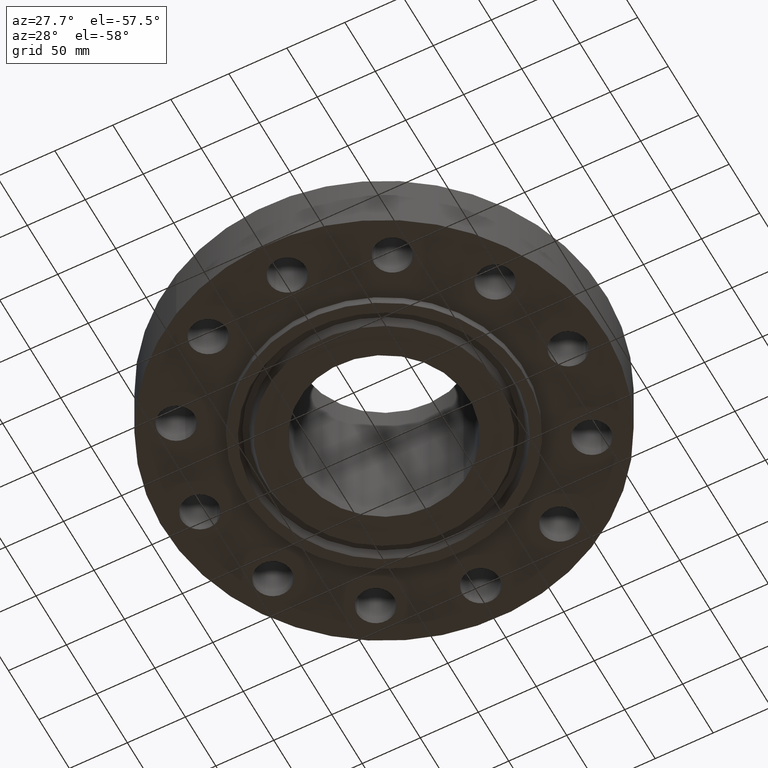
[diagram: clean part render]
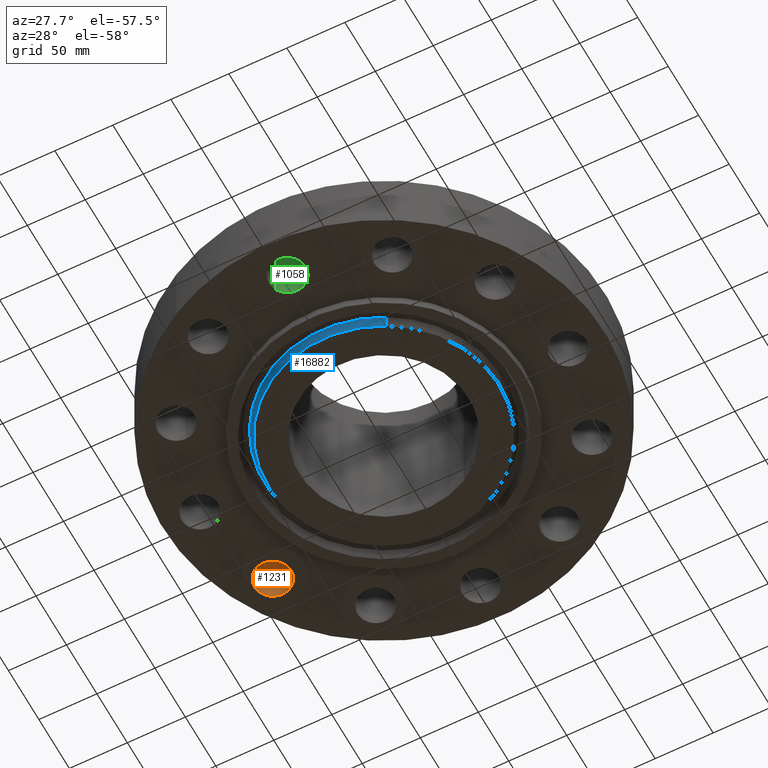
[diagram: same view with three faces highlighted in distinct colors, each labeled with its STEP entity id]
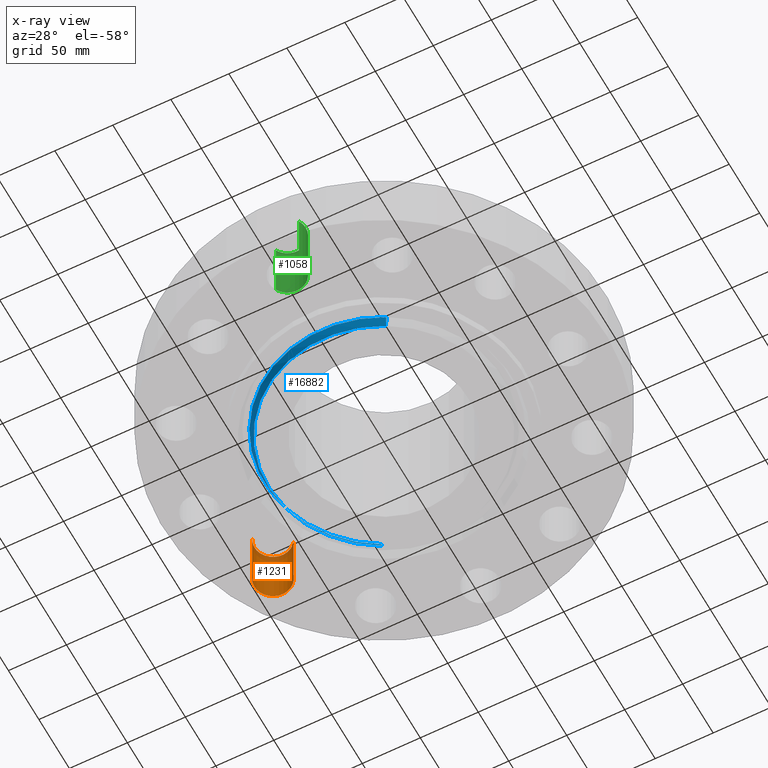
[diagram: x-ray of the same camera — body ghosted, the three highlighted faces saturated]
A machine part, auxiliary view with three faces highlighted in distinct colors.
The next image is the same camera in x-ray (body ghosted, the three faces saturated) — at least one of them is partly hidden behind the body in this view.
Their STEP definitions:

[orange] entity #1231 — the highlighted cylindrical surface (edge-blend (fillet) strip) has radius 15.875 mm, axis along (0, 0, -1).
#345=AXIS2_PLACEMENT_3D('Circle Axis2P3D',#343,#344,$) ;
#605=AXIS2_PLACEMENT_3D('Circle Axis2P3D',#603,#604,$) ;
#1213=AXIS2_PLACEMENT_3D('Cylinder Axis2P3D',#1210,#1211,#1212) ;
#343=CARTESIAN_POINT('Axis2P3D Location',(-5.41265877367,3.12500000001,0.)) ;
#347=CARTESIAN_POINT('Vertex',(-5.94640000907,2.79981498548,0.)) ;
#349=CARTESIAN_POINT('Vertex',(-4.87891753827,3.45018501453,0.)) ;
#598=CARTESIAN_POINT('Vertex',(-4.87891753829,3.45018501452,2.18999999999)) ;
#600=CARTESIAN_POINT('Vertex',(-5.94640000905,2.7998149855,2.18999999999)) ;
#603=CARTESIAN_POINT('Axis2P3D Location',(-5.41265877364,3.12499999998,2.19000000001)) ;
#1210=CARTESIAN_POINT('Axis2P3D Location',(-5.41265877367,3.12500000001,2.18606299213)) ;
#1215=CARTESIAN_POINT('Line Origine',(-5.94640000905,2.7998149855,1.09499999999)) ;
#1220=CARTESIAN_POINT('Line Origine',(-4.87891753829,3.45018501452,1.09499999999)) ;
#344=DIRECTION('Axis2P3D Direction',(0.,0.,-0.0393700787402)) ;
#604=DIRECTION('Axis2P3D Direction',(0.,0.,-0.0393700787402)) ;
#1211=DIRECTION('Axis2P3D Direction',(0.,0.,-0.0393700787402)) ;
#1212=DIRECTION('Axis2P3D XDirection',(-0.0336214951417,-0.0204840954021,0.)) ;
#1216=DIRECTION('Vector Direction',(0.,0.,-0.0393700787402)) ;
#1221=DIRECTION('Vector Direction',(0.,0.,-0.0393700787402)) ;
#1217=VECTOR('Line Direction',#1216,0.0393700787402) ;
#1222=VECTOR('Line Direction',#1221,0.0393700787402) ;
#1226=ORIENTED_EDGE('',*,*,#1219,.F.) ;
#1227=ORIENTED_EDGE('',*,*,#351,.T.) ;
#1228=ORIENTED_EDGE('',*,*,#1224,.T.) ;
#1229=ORIENTED_EDGE('',*,*,#607,.F.) ;
#1231=ADVANCED_FACE('PartBody',(#1230),#1214,.F.) ;
#346=CIRCLE('generated circle',#345,0.625000000025) ;
#606=CIRCLE('generated circle',#605,0.625000000025) ;
#1214=CYLINDRICAL_SURFACE('generated cylinder',#1213,0.625000000003) ;
#351=EDGE_CURVE('',#348,#350,#346,.T.) ;
#607=EDGE_CURVE('',#601,#599,#606,.T.) ;
#1219=EDGE_CURVE('',#348,#601,#1218,.F.) ;
#1224=EDGE_CURVE('',#350,#599,#1223,.F.) ;
#1225=EDGE_LOOP('',(#1226,#1227,#1228,#1229)) ;
#1230=FACE_OUTER_BOUND('',#1225,.T.) ;
#1218=LINE('Line',#1215,#1217) ;
#1223=LINE('Line',#1220,#1222) ;
#348=VERTEX_POINT('',#347) ;
#350=VERTEX_POINT('',#349) ;
#599=VERTEX_POINT('',#598) ;
#601=VERTEX_POINT('',#600) ;

[blue] entity #16882 — the highlighted conical surface has half-angle 23 deg.
#16319=AXIS2_PLACEMENT_3D('Circle Axis2P3D',#16317,#16318,$) ;
#16869=AXIS2_PLACEMENT_3D('Cone Axis2P3D',#16866,#16867,#16868) ;
#16873=AXIS2_PLACEMENT_3D('Circle Axis2P3D',#16871,#16872,$) ;
#16283=CARTESIAN_POINT('Vertex',(1.93994922354,-3.55105323443,-0.0190701156809)) ;
#16290=CARTESIAN_POINT('Vertex',(-1.93994922354,3.55105323443,-0.0190701156788)) ;
#16317=CARTESIAN_POINT('Axis2P3D Location',(0.,0.,-0.0190701156809)) ;
#16833=CARTESIAN_POINT('Line Origine',(-1.91009213606,3.49640020239,-0.16578505784)) ;
#16837=CARTESIAN_POINT('Vertex',(-1.8802350486,3.44174717035,-0.312500000001)) ;
#16840=CARTESIAN_POINT('Line Origine',(1.91009213606,-3.49640020239,-0.16578505784)) ;
#16844=CARTESIAN_POINT('Vertex',(1.8802350486,-3.44174717037,-0.312500000001)) ;
#16866=CARTESIAN_POINT('Axis2P3D Location',(0.,0.,-0.372500000001)) ;
#16871=CARTESIAN_POINT('Axis2P3D Location',(0.,0.,-0.312499999998)) ;
#16318=DIRECTION('Axis2P3D Direction',(0.,0.,0.0393700787402)) ;
#16834=DIRECTION('Vector Direction',(-0.00737505833566,0.0134999537303,0.0362403485611)) ;
#16841=DIRECTION('Vector Direction',(0.00737505833566,-0.0134999537303,0.0362403485611)) ;
#16867=DIRECTION('Axis2P3D Direction',(0.,0.,0.0393700787402)) ;
#16868=DIRECTION('Axis2P3D XDirection',(-0.0188750212049,0.0345504945626,0.)) ;
#16872=DIRECTION('Axis2P3D Direction',(0.,0.,0.0393700787402)) ;
#16835=VECTOR('Line Direction',#16834,0.0393700787402) ;
#16842=VECTOR('Line Direction',#16841,0.0393700787402) ;
#16877=ORIENTED_EDGE('',*,*,#16846,.F.) ;
#16878=ORIENTED_EDGE('',*,*,#16321,.F.) ;
#16879=ORIENTED_EDGE('',*,*,#16839,.T.) ;
#16880=ORIENTED_EDGE('',*,*,#16875,.F.) ;
#16882=ADVANCED_FACE('PartBody',(#16881),#16870,.T.) ;
#16320=CIRCLE('generated circle',#16319,4.04640359624) ;
#16874=CIRCLE('generated circle',#16873,3.92185000001) ;
#16870=CONICAL_SURFACE('Cone',#16869,3.89638151104,0.401425727959) ;
#16321=EDGE_CURVE('',#16291,#16284,#16320,.T.) ;
#16839=EDGE_CURVE('',#16291,#16838,#16836,.F.) ;
#16846=EDGE_CURVE('',#16284,#16845,#16843,.F.) ;
#16875=EDGE_CURVE('',#16845,#16838,#16874,.F.) ;
#16876=EDGE_LOOP('',(#16877,#16878,#16879,#16880)) ;
#16881=FACE_OUTER_BOUND('',#16876,.T.) ;
#16836=LINE('Line',#16833,#16835) ;
#16843=LINE('Line',#16840,#16842) ;
#16284=VERTEX_POINT('',#16283) ;
#16291=VERTEX_POINT('',#16290) ;
#16838=VERTEX_POINT('',#16837) ;
#16845=VERTEX_POINT('',#16844) ;

[green] entity #1058 — the highlighted cylindrical surface (edge-blend (fillet) strip) has radius 15.875 mm, axis along (0, 0, -1).
#282=AXIS2_PLACEMENT_3D('Circle Axis2P3D',#280,#281,$) ;
#524=AXIS2_PLACEMENT_3D('Circle Axis2P3D',#522,#523,$) ;
#1050=AXIS2_PLACEMENT_3D('Cylinder Axis2P3D',#1047,#1048,#1049) ;
#275=CARTESIAN_POINT('Vertex',(0.548489101187,-6.54964096162,0.)) ;
#277=CARTESIAN_POINT('Vertex',(-0.548489101187,-5.95035903837,0.)) ;
#280=CARTESIAN_POINT('Axis2P3D Location',(1.74838271595E-017,-6.24999999999,0.)) ;
#522=CARTESIAN_POINT('Axis2P3D Location',(1.74838271595E-017,-6.25000000004,2.19000000001)) ;
#526=CARTESIAN_POINT('Vertex',(-0.548489101187,-5.95035903842,2.19000000001)) ;
#528=CARTESIAN_POINT('Vertex',(0.548489101184,-6.54964096166,2.18999999999)) ;
#1023=CARTESIAN_POINT('Line Origine',(0.548489101184,-6.54964096166,1.095)) ;
#1028=CARTESIAN_POINT('Line Origine',(-0.548489101184,-5.9503590384,1.095)) ;
#1047=CARTESIAN_POINT('Axis2P3D Location',(7.6540424947E-016,-6.25000000003,2.18606299213)) ;
#281=DIRECTION('Axis2P3D Direction',(0.,0.,-0.0393700787402)) ;
#523=DIRECTION('Axis2P3D Direction',(0.,0.,-0.0393700787402)) ;
#1024=DIRECTION('Vector Direction',(0.,0.,-0.0393700787402)) ;
#1029=DIRECTION('Vector Direction',(0.,0.,-0.0393700787402)) ;
#1048=DIRECTION('Axis2P3D Direction',(0.,0.,-0.0393700787402)) ;
#1049=DIRECTION('Axis2P3D XDirection',(-0.0345504945626,0.0188750212049,0.)) ;
#1025=VECTOR('Line Direction',#1024,0.0393700787402) ;
#1030=VECTOR('Line Direction',#1029,0.0393700787402) ;
#1053=ORIENTED_EDGE('',*,*,#1032,.F.) ;
#1054=ORIENTED_EDGE('',*,*,#284,.T.) ;
#1055=ORIENTED_EDGE('',*,*,#1027,.T.) ;
#1056=ORIENTED_EDGE('',*,*,#530,.F.) ;
#1058=ADVANCED_FACE('PartBody',(#1057),#1051,.F.) ;
#283=CIRCLE('generated circle',#282,0.625000000002) ;
#525=CIRCLE('generated circle',#524,0.625000000002) ;
#1051=CYLINDRICAL_SURFACE('generated cylinder',#1050,0.625000000003) ;
#284=EDGE_CURVE('',#278,#276,#283,.T.) ;
#530=EDGE_CURVE('',#527,#529,#525,.T.) ;
#1027=EDGE_CURVE('',#276,#529,#1026,.F.) ;
#1032=EDGE_CURVE('',#278,#527,#1031,.F.) ;
#1052=EDGE_LOOP('',(#1053,#1054,#1055,#1056)) ;
#1057=FACE_OUTER_BOUND('',#1052,.T.) ;
#1026=LINE('Line',#1023,#1025) ;
#1031=LINE('Line',#1028,#1030) ;
#276=VERTEX_POINT('',#275) ;
#278=VERTEX_POINT('',#277) ;
#527=VERTEX_POINT('',#526) ;
#529=VERTEX_POINT('',#528) ;